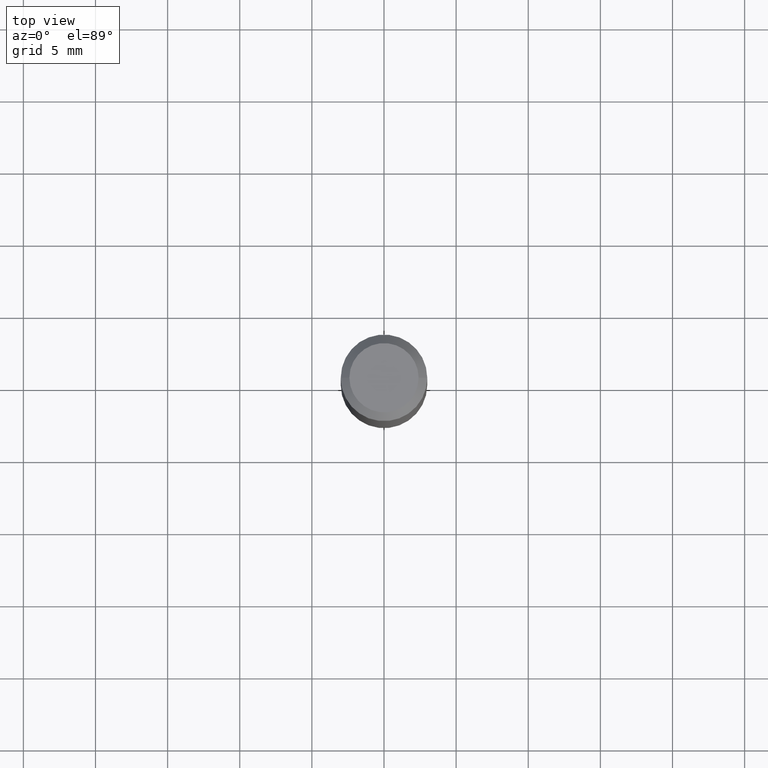
[diagram: clean part render]
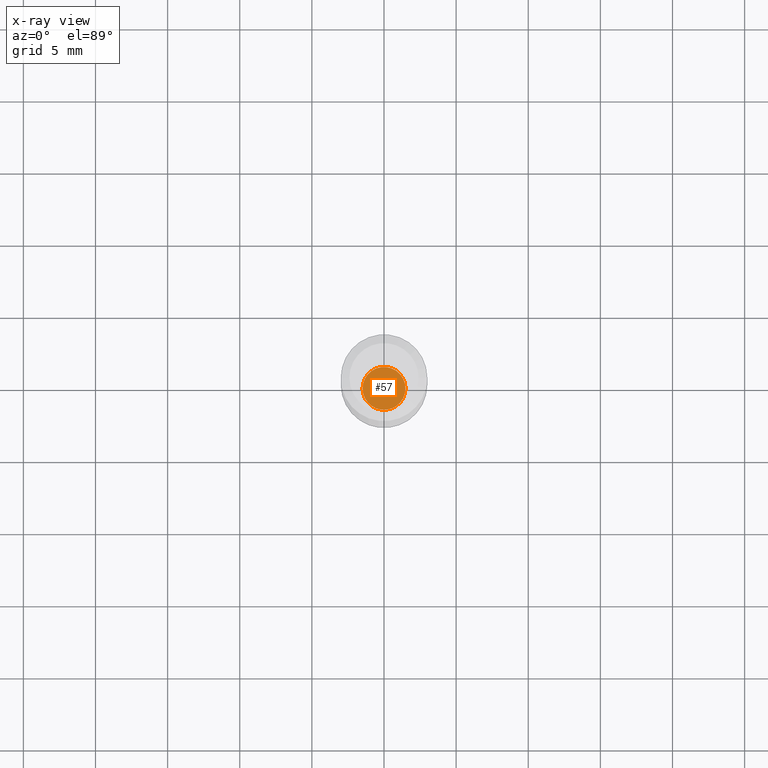
[diagram: x-ray — body ghosted, one internal face saturated and labeled with its STEP entity id]
A machine part, top view, then the same camera in x-ray: the body is ghosted and one INTERNAL B-rep face — a face not visible from any outside direction — is saturated and labeled: STEP entity #57.
In plain terms, the highlighted planar face has unit normal (-0, 0, 1).
Its self-contained STEP definition (entity closure, byte-faithful):
#6 = DIRECTION ( 'NONE',  ( 1.000000000000000000, -6.982962677686264344E-15, 0.000000000000000000 ) ) ;
#9 = CARTESIAN_POINT ( 'NONE',  ( 4.138955954468343780E-29, -5.909332165992023872E-15, -1.692500000000000115 ) ) ;
#12 = ORIENTED_EDGE ( 'NONE', *, *, #456, .F. ) ;
#32 = DIRECTION ( 'NONE',  ( -2.438088387897960049E-29, 3.491481338843145188E-15, 1.000000000000000000 ) ) ;
#53 = DIRECTION ( 'NONE',  ( -2.445468806185136597E-29, 3.491481338843145583E-15, 1.000000000000000000 ) ) ;
#57 = ADVANCED_FACE ( 'NONE', ( #196 ), #201, .F. ) ;
#94 = AXIS2_PLACEMENT_3D ( 'NONE', #9, #53, #6 ) ;
#147 = EDGE_LOOP ( 'NONE', ( #12, #206 ) ) ;
#158 = DIRECTION ( 'NONE',  ( 1.000000000000000000, -6.982962677686265922E-15, 4.876176775795935793E-29 ) ) ;
#165 = CARTESIAN_POINT ( 'NONE',  ( -0.05854999999999999788, -5.490660167030374076E-15, -1.692500000000000115 ) ) ;
#196 = FACE_OUTER_BOUND ( 'NONE', #147, .T. ) ;
#201 = PLANE ( 'NONE',  #458 ) ;
#206 = ORIENTED_EDGE ( 'NONE', *, *, #299, .F. ) ;
#233 = VERTEX_POINT ( 'NONE', #300 ) ;
#261 = CIRCLE ( 'NONE', #324, 0.05854999999999999788 ) ;
#268 = CIRCLE ( 'NONE', #94, 0.05854999999999999788 ) ;
#286 = CARTESIAN_POINT ( 'NONE',  ( 4.138955954468343780E-29, -5.909332165992023872E-15, -1.692500000000000115 ) ) ;
#298 = DIRECTION ( 'NONE',  ( -2.445468806185136597E-29, 3.491481338843145583E-15, 1.000000000000000000 ) ) ;
#299 = EDGE_CURVE ( 'NONE', #492, #233, #261, .T. ) ;
#300 = CARTESIAN_POINT ( 'NONE',  ( 0.05854999999999999788, -6.318184630770554996E-15, -1.692500000000000115 ) ) ;
#324 = AXIS2_PLACEMENT_3D ( 'NONE', #493, #298, #422 ) ;
#422 = DIRECTION ( 'NONE',  ( 1.000000000000000000, -6.982962677686264344E-15, 0.000000000000000000 ) ) ;
#456 = EDGE_CURVE ( 'NONE', #233, #492, #268, .T. ) ;
#458 = AXIS2_PLACEMENT_3D ( 'NONE', #286, #32, #158 ) ;
#492 = VERTEX_POINT ( 'NONE', #165 ) ;
#493 = CARTESIAN_POINT ( 'NONE',  ( 4.138955954468343780E-29, -5.909332165992023872E-15, -1.692500000000000115 ) ) ;